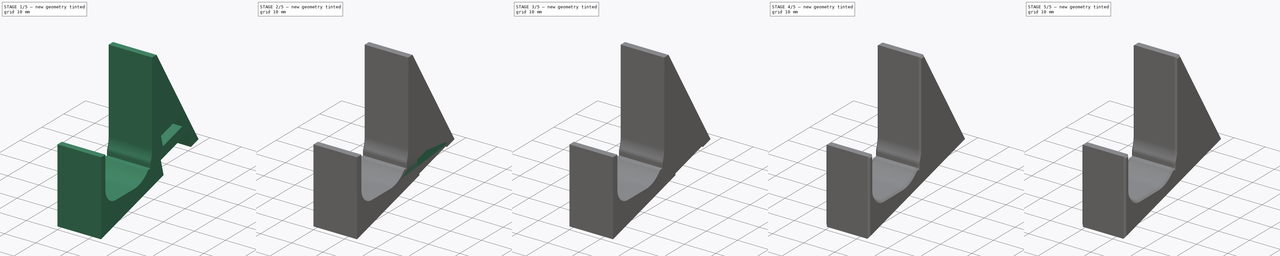
[diagram: build sequence overview — one tinted view per stage of 5, left to right]
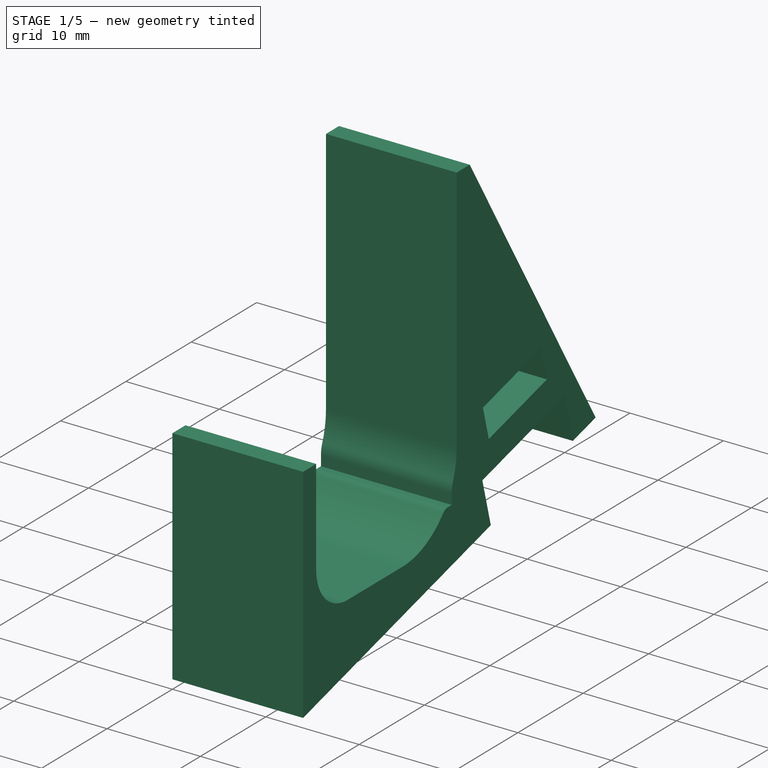
[diagram: stage 1 of 5 — iso view after this stage's code; geometry added in this stage tinted green]
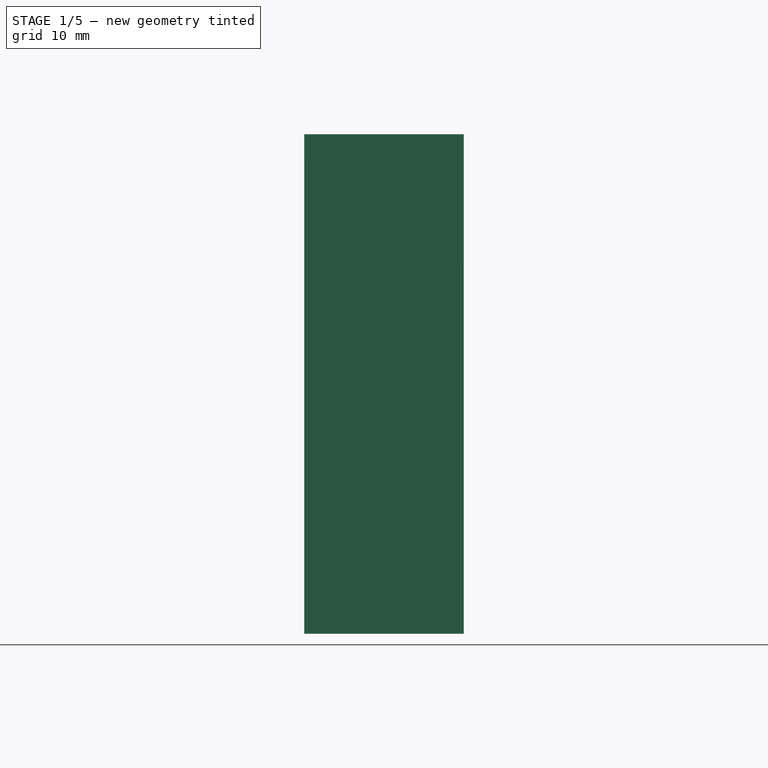
[diagram: stage 1 of 5 — front view after this stage's code; geometry added in this stage tinted green]
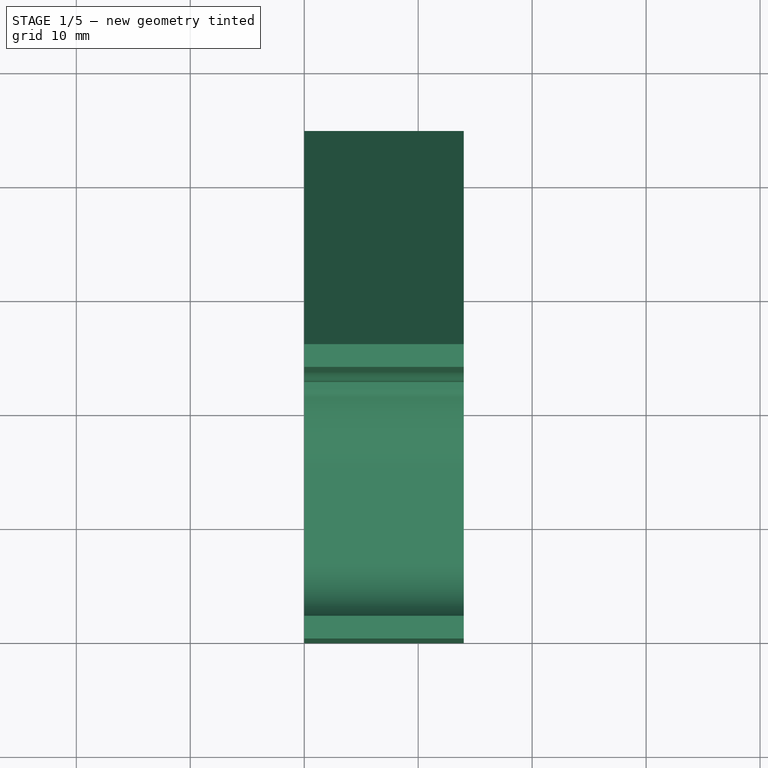
[diagram: stage 1 of 5 — top view after this stage's code; geometry added in this stage tinted green]
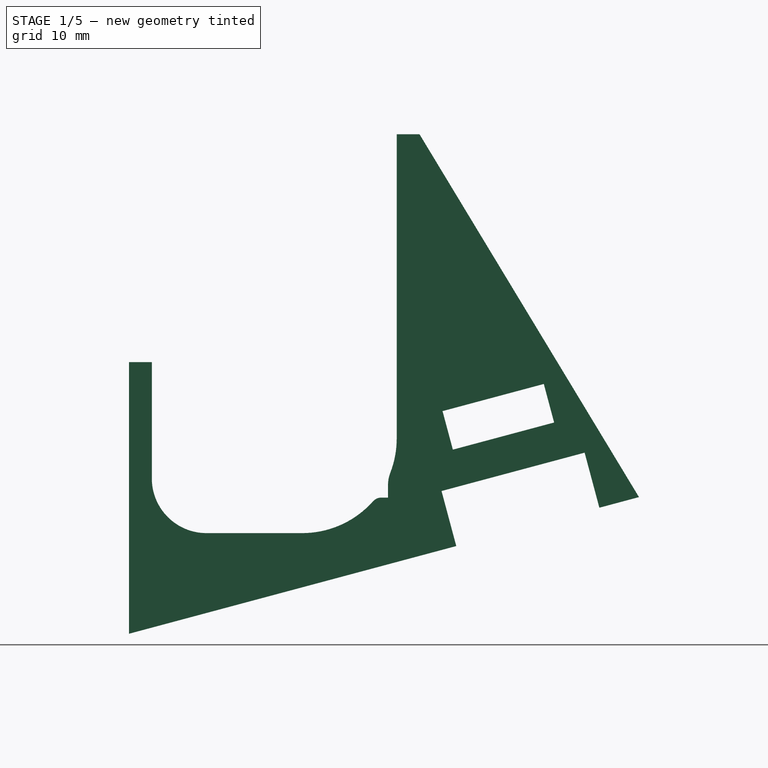
[diagram: stage 1 of 5 — right view after this stage's code; geometry added in this stage tinted green]
FCSTD DOCUMENT  (FreeCAD 1.0R39285 (Git))
Label: New Nintendo 2DS XL Kit
License: All rights reserved
LicenseURL: http://en.wikipedia.org/wiki/All_rights_reserved
objects: PartDesign::Pocket×11, Sketcher::SketchObject×9, PartDesign::Pad×5, PartDesign::Body×4, Part::Part2DObjectPython×3, PartDesign::FeatureBase×3, PartDesign::Chamfer×3, PartDesign::ShapeBinder×1, App::Part×1
note: 89 computed .brp shape members not serialized (recipe doc carries the construction recipe); baked Part::Feature solids carry a one-line shape summary decoded from their .brp

FEATURE [Sketcher::SketchObject] Sketch
  ArcFitTolerance = 0
  AttachmentSupport = -> [YZ_Plane]
  FullyConstrained = true
  MakeInternals = false
  MapMode = 5
  Placement = pos=(0,0,0) rot=(0.57735,0.57735,0.57735;2.0944rad)
  sketch-geometry (16):
    g0: LineSegment StartX=0 StartY=0 StartZ=0 EndX=0 EndY=17 EndZ=0
    g1: LineSegment StartX=0 StartY=0 StartZ=0 EndX=25.4904 EndY=0 EndZ=0
    g2: LineSegment StartX=25.4904 StartY=0 StartZ=0 EndX=25.4904 EndY=37 EndZ=0
    g3: LineSegment StartX=25.4904 StartY=37 StartZ=0 EndX=23.4904 EndY=37 EndZ=0
    g4: LineSegment StartX=23.4904 StartY=37 StartZ=0 EndX=23.4904 EndY=10.3 EndZ=0
    g5: LineSegment StartX=0 StartY=17 StartZ=0 EndX=2 EndY=17 EndZ=0
    g6: LineSegment StartX=2 StartY=17 StartZ=0 EndX=2 EndY=6.8 EndZ=0
    g7: ArcOfCircle CenterX=6.8 CenterY=6.8 CenterZ=0 NormalX=0 NormalY=0 NormalZ=1 AngleXU=0 Radius=4.8 StartAngle=3.14159 EndAngle=4.71239
    g8: LineSegment StartX=6.8 StartY=2 StartZ=0 EndX=15.2 EndY=2 EndZ=0
    g9: ArcOfCircle CenterX=15.2 CenterY=10.3 CenterZ=0 NormalX=0 NormalY=0 NormalZ=1 AngleXU=0 Radius=8.3 StartAngle=4.71239 EndAngle=5.55591
    g10: ArcOfCircle CenterX=22.147 CenterY=4.11701 CenterZ=0 NormalX=0 NormalY=0 NormalZ=1 AngleXU=0 Radius=1 StartAngle=1.5708 EndAngle=2.41432
    g11: LineSegment StartX=22.147 StartY=5.11701 StartZ=0 EndX=22.727 EndY=5.11701 EndZ=0
    g12: LineSegment StartX=22.727 StartY=5.11701 StartZ=0 EndX=22.727 EndY=6.21701 EndZ=0
    g13: ArcOfCircle CenterX=25.727 CenterY=6.21701 CenterZ=0 NormalX=0 NormalY=0 NormalZ=1 AngleXU=0 Radius=3 StartAngle=2.7719 EndAngle=3.14159
    g14: ArcOfCircle CenterX=15.1904 CenterY=10.3 CenterZ=0 NormalX=0 NormalY=0 NormalZ=1 AngleXU=0 Radius=8.3 StartAngle=5.9135 EndAngle=6.28319
    g15: LineSegment [constr] StartX=15.2 StartY=2 StartZ=0 EndX=15.2 EndY=0 EndZ=0
  constraints (44):
    c: Coincident(g0,g-1)
    c: PointOnObject(g0,g-2)
    c: Coincident(g1,g0)
    c: PointOnObject(g1,g-1)
    c: Coincident(g2,g1)
    c: Vertical(g2)
    c: Coincident(g3,g2)
    c: Horizontal(g3)
    c: Coincident(g4,g3)
    c: Vertical(g4)
    c: Coincident(g5,g0)
    c: Horizontal(g5)
    c: Coincident(g6,g5)
    c: Vertical(g6)
    c: Distance(g6) = 10.2
    c: Distance(g5) = 2
    c: Equal(g5,g3)
    c: Tangent(g7,g6) = -1.5708
    c: Tangent(g8,g7) = -1.5708
    c: Radius(g7) = 4.8
    c: Distance(g8) = 8.4
    c: Tangent(g9,g8) = -1.5708
    c: Tangent(g10,g9) = 1.5708
    c: Radius(g9) = 8.3
    c: Radius(g10) = 1
    c: Distance(g11) = 0.58
    c: Tangent(g11,g10) = 1.5708
    c: Coincident(g12,g11)
    c: Distance(g12) = 1.1
    c: Perpendicular(g12,g11)
    c: Tangent(g13,g12) = 1.5708
    c: Tangent(g14,g13) = 1.5708
    c: Tangent(g14,g4) = 1.5708
    c: Distance(g4) = 26.7
    c: Radius(g14) = 8.3
    c: Radius(g13) = 3
    c: Horizontal(g8)
    c: Horizontal(g11)
    c: Coincident(g15,g8)
    c: PointOnObject(g15,g1)
    c: Vertical(g15)
    c: Equal(g15,g5)
    c: DistanceX(g8,g9) = 6.2
    c: Distance(g2) = 37
FEATURE [PartDesign::Pad] Pad
  Direction = (1,0,0)
  Length = 14
  Length2 = 10
  Placement = pos=(0,0,0) rot=(0.57735,0.57735,0.57735;2.0944rad)
  Profile = -> Sketch
  ReferenceAxis = -> Sketch [N_Axis]
  Suppressed = false
  Type = 0
FEATURE [Part::Part2DObjectPython] ShapeString  # Draft 2D object (typed FeaturePython)
  FontFile = <path> Bit Git Repro/16BitVirtualStudiosDesigns/Font/OpenSans-Regular.ttf
  Fuse = false
  Justification = 6
  JustificationReference = 0
  KeepLeftMargin = true
  MakeFace = true
  ObliqueAngle = 0
  Placement = pos=(12.49,4,10.34) rot=(0,0.707107,0.707107;3.14159rad)
  ScaleToSize = false
  Size = 4
  String = N2XL
  Tracking = 0
FEATURE [PartDesign::Pocket] Pocket
  BaseFeature = -> Pad
  Direction = (-1e-16,-1,2e-16)
  Length = 0
  Length2 = 5
  Offset = 0.2
  Placement = pos=(0,0,0) rot=(0.57735,0.57735,0.57735;2.0944rad)
  Profile = -> ShapeString
  ReferenceAxis = -> ShapeString [N_Axis]
  Suppressed = false
  Type = 3
  UpToFace = -> Pad [Face3]
FEATURE [PartDesign::Body] Body  label="Profile"
  AllowCompound = false
  Group = -> [Sketch,Pad,ShapeString,Pocket]
  Origin = -> Origin
  Tip = -> Pocket
FEATURE [PartDesign::FeatureBase] Clone
  BaseFeature = -> Body
  Suppressed = false
FEATURE [Sketcher::SketchObject] Sketch001
  ArcFitTolerance = 0
  AttachmentSupport = -> [Clone]
  ExternalGeometry = -> [Clone]
  FullyConstrained = true
  MakeInternals = false
  MapMode = 5
  Placement = pos=(14,-1.24e-14,-3.1e-15) rot=(0.57735,0.57735,0.57735;2.0944rad)
  sketch-geometry (19):
    g0: LineSegment StartX=25.4904 StartY=37 StartZ=0 EndX=25.4904 EndY=2 EndZ=0
    g1: LineSegment StartX=25.4904 StartY=2 StartZ=0 EndX=0 EndY=2 EndZ=0
    g2: LineSegment StartX=0 StartY=2 StartZ=0 EndX=0 EndY=-6.83014 EndZ=0
    g3: LineSegment StartX=0 StartY=-6.83014 StartZ=0 EndX=28.7164 EndY=0.86439 EndZ=0
    g4: LineSegment StartX=28.7164 StartY=0.86439 StartZ=0 EndX=27.4223 EndY=5.69402 EndZ=0
    g5: LineSegment StartX=27.4223 StartY=5.69402 StartZ=0 EndX=39.9793 EndY=9.05867 EndZ=0
    g6: LineSegment StartX=39.9793 StartY=9.05867 StartZ=0 EndX=41.2734 EndY=4.22904 EndZ=0
    g7: LineSegment StartX=41.2734 StartY=4.22904 StartZ=0 EndX=44.7486 EndY=5.16022 EndZ=0
    g8: LineSegment StartX=44.7486 StartY=5.16022 StartZ=0 EndX=25.4904 EndY=37 EndZ=0
    g9: LineSegment StartX=28.4164 StartY=9.32503 StartZ=0 EndX=37.3029 EndY=11.7062 EndZ=0
    g10: LineSegment StartX=37.3029 StartY=11.7062 StartZ=0 EndX=36.397 EndY=15.0869 EndZ=0
    g11: LineSegment StartX=36.397 StartY=15.0869 StartZ=0 EndX=27.5105 EndY=12.7058 EndZ=0
    g12: LineSegment StartX=27.5105 StartY=12.7058 StartZ=0 EndX=28.4164 EndY=9.32503 EndZ=0
    g13: LineSegment [constr] StartX=28.7164 StartY=0.86439 StartZ=0 EndX=41.2734 EndY=4.22904 EndZ=0
    g14: LineSegment [constr] StartX=33.7008 StartY=7.37634 StartZ=0 EndX=32.8596 EndY=10.5156 EndZ=0
    g15: LineSegment [constr] StartX=27.4223 StartY=5.69402 StartZ=0 EndX=25.4904 EndY=5.17638 EndZ=0
    g16: LineSegment [constr] StartX=27.5105 StartY=12.7058 StartZ=0 EndX=25.4904 EndY=12.1645 EndZ=0
    g17: LineSegment [constr] StartX=36.397 StartY=15.0869 StartZ=0 EndX=38.4171 EndY=15.6282 EndZ=0
    g18: LineSegment [constr] StartX=39.9793 StartY=9.05867 StartZ=0 EndX=42.0544 EndY=9.61468 EndZ=0
  constraints (54):
    c: Coincident(g0,g-4)
    c: PointOnObject(g0,g-4)
    c: Coincident(g1,g0)
    c: PointOnObject(g1,g-2)
    c: Horizontal(g1)
    c: Coincident(g2,g1)
    c: Vertical(g2)
    c: Coincident(g3,g2)
    c: Coincident(g4,g3)
    c: Coincident(g5,g4)
    c: Coincident(g6,g5)
    c: Coincident(g7,g6)
    c: Coincident(g8,g7)
    c: Coincident(g8,g0)
    c: Coincident(g10,g9)
    c: Coincident(g11,g10)
    c: Coincident(g12,g11)
    c: Coincident(g12,g9)
    c: Coincident(g13,g3)
    c: Coincident(g13,g6)
    c: Symmetric(g9,g9,g14)
    c: Symmetric(g5,g4,g14)
    c: Perpendicular(g4,g3)
    c: Perpendicular(g7,g6)
    c: Perpendicular(g5,g6)
    c: Perpendicular(g14,g5)
    c: Perpendicular(g5,g4)
    c: Perpendicular(g14,g9)
    c: Perpendicular(g12,g9)
    c: Perpendicular(g10,g9)
    c: Perpendicular(g10,g11)
    c: Parallel(g13,g3)
    c: PointOnObject(g-4,g3)
    c: PointOnObject(g-3,g1)
    c: Distance(g6) = 5
    c: Distance(g5) = 13
    c: Distance(g14) = 3.25
    c: Distance(g10) = 3.5
    c: Distance(g11) = 9.2
    c: Angle(g3,g2) = 1.309
    c: Coincident(g15,g4)
    c: PointOnObject(g15,g0)
    c: Coincident(g16,g11)
    c: PointOnObject(g16,g0)
    c: Coincident(g17,g10)
    c: PointOnObject(g17,g8)
    c: Coincident(g18,g5)
    c: PointOnObject(g18,g8)
    c: Parallel(g16,g11)
    c: Parallel(g17,g11)
    c: Parallel(g18,g5)
    c: Parallel(g5,g15)
    c: Equal(g16,g17)
    c: Distance(g15) = 2
FEATURE [PartDesign::Pad] Pad001
  BaseFeature = -> Clone
  Direction = (1,0,0)
  Length = 14
  Length2 = 10
  Profile = -> Sketch001
  ReferenceAxis = -> Sketch001 [N_Axis]
  Refine = true
  Reversed = true
  Suppressed = false
  Type = 0
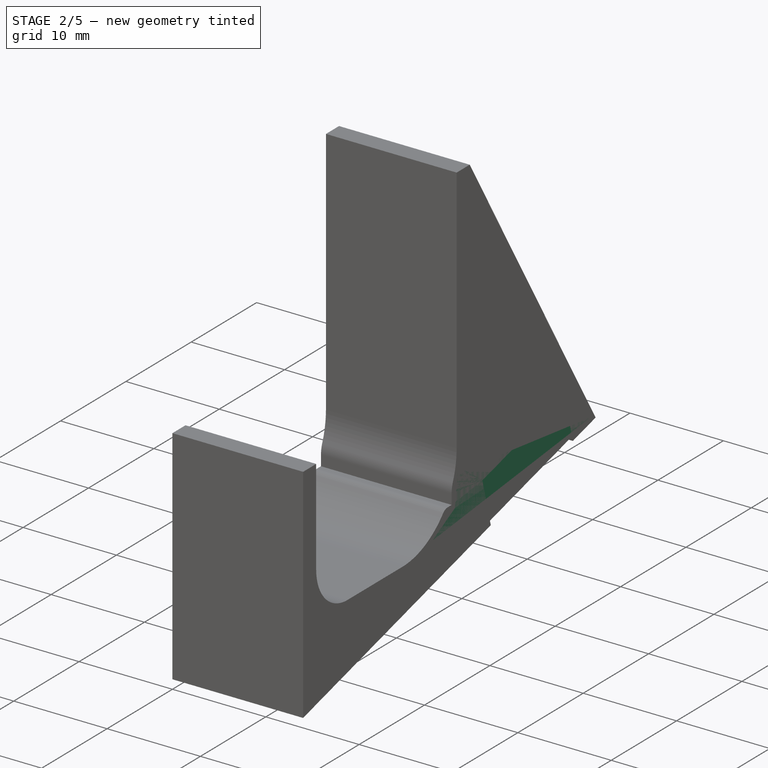
[diagram: stage 2 of 5 — iso view after this stage's code; geometry added in this stage tinted green]
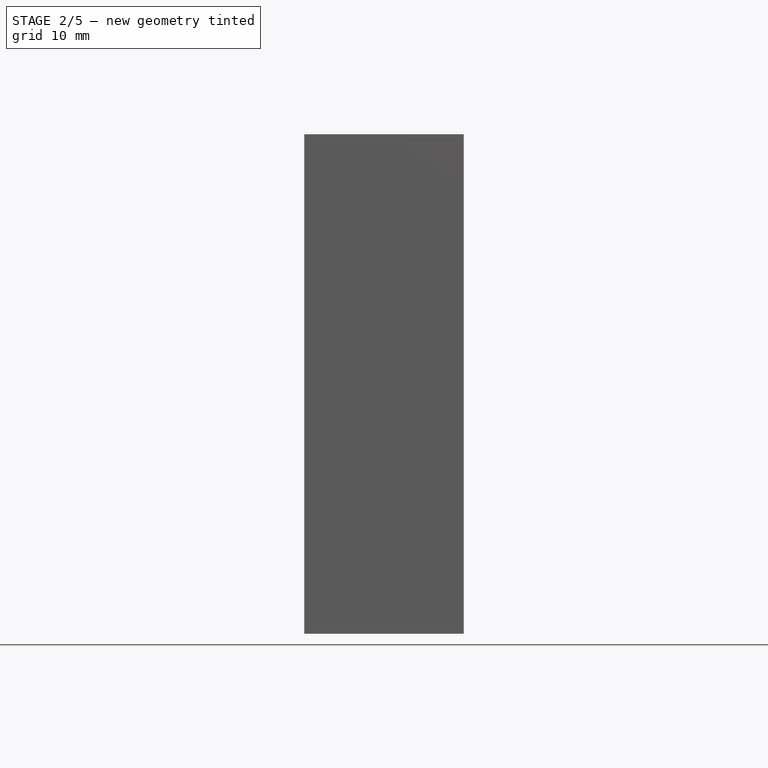
[diagram: stage 2 of 5 — front view after this stage's code; geometry added in this stage tinted green]
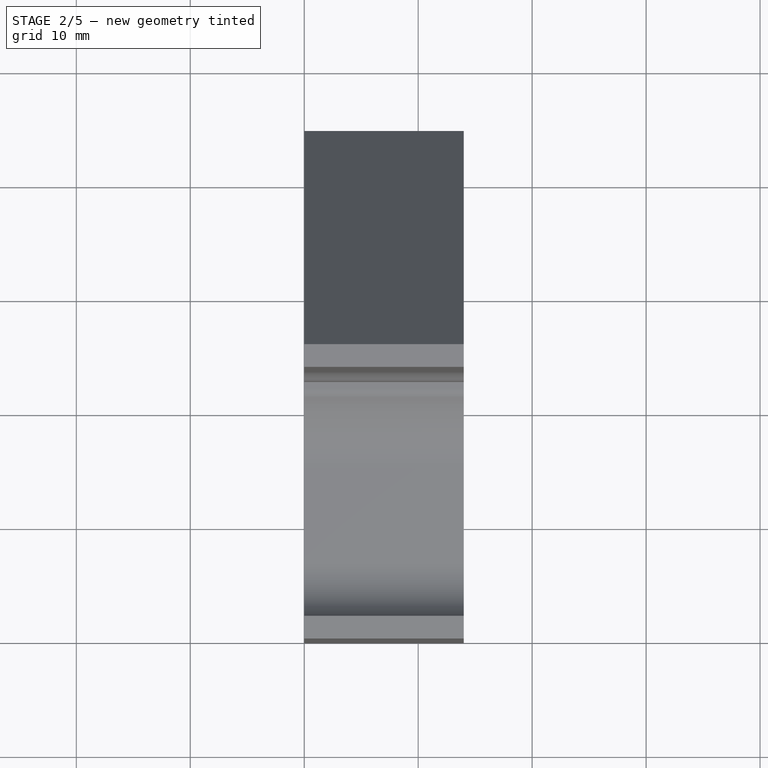
[diagram: stage 2 of 5 — top view after this stage's code; geometry added in this stage tinted green]
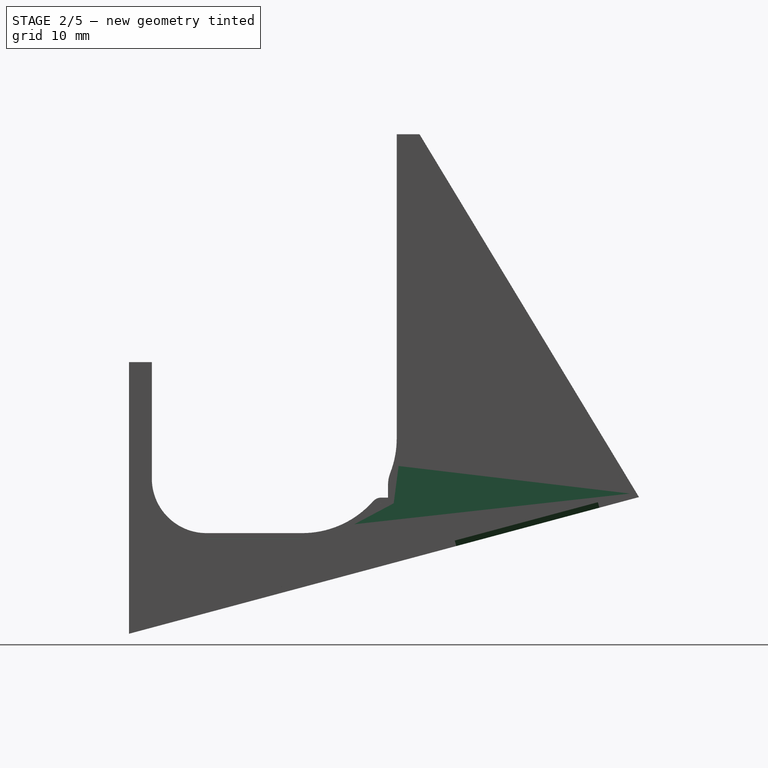
[diagram: stage 2 of 5 — right view after this stage's code; geometry added in this stage tinted green]
FEATURE [PartDesign::FeatureBase] Clone001
  BaseFeature = -> Pad001
  Suppressed = false
FEATURE [Sketcher::SketchObject] Sketch007
  ArcFitTolerance = 0
  AttachmentSupport = -> [Pad001]
  ExternalGeometry = -> [Pad001]
  FullyConstrained = true
  MakeInternals = false
  MapMode = 5
  Placement = pos=(14,6.6e-15,3.8e-15) rot=(0.57735,0.57735,0.57735;2.0944rad)
  sketch-geometry (8):
    g0: LineSegment StartX=27.4223 StartY=5.69402 StartZ=0 EndX=39.9793 EndY=9.05867 EndZ=0
    g1: LineSegment StartX=41.2734 StartY=4.22904 StartZ=0 EndX=28.7164 EndY=0.86439 EndZ=0
    g2: LineSegment StartX=28.7164 StartY=0.86439 StartZ=0 EndX=27.4223 EndY=5.69402 EndZ=0
    g3: LineSegment StartX=28.4164 StartY=9.32503 StartZ=0 EndX=27.5105 EndY=12.7058 EndZ=0
    g4: LineSegment StartX=27.5105 StartY=12.7058 StartZ=0 EndX=36.397 EndY=15.0869 EndZ=0
    g5: LineSegment StartX=28.4164 StartY=9.32503 StartZ=0 EndX=37.3029 EndY=11.7062 EndZ=0
    g6: LineSegment StartX=36.397 StartY=15.0869 StartZ=0 EndX=37.3029 EndY=11.7062 EndZ=0
    g7: LineSegment StartX=39.9793 StartY=9.05867 StartZ=0 EndX=41.2734 EndY=4.22904 EndZ=0
  constraints (16):
    c: Coincident(g0,g-6)
    c: Coincident(g0,g-5)
    c: Coincident(g1,g-5)
    c: Coincident(g1,g-6)
    c: Coincident(g2,g1)
    c: Coincident(g2,g0)
    c: Coincident(g3,g-3)
    c: Coincident(g3,g-3)
    c: Coincident(g4,g3)
    c: Coincident(g4,g-4)
    c: Coincident(g5,g3)
    c: Coincident(g5,g-4)
    c: Coincident(g6,g4)
    c: Coincident(g6,g5)
    c: Coincident(g7,g0)
    c: Coincident(g7,g1)
FEATURE [PartDesign::Pad] Pad002
  BaseFeature = -> Pad001
  Direction = (1,0,0)
  Length = 14
  Length2 = 10
  Profile = -> Sketch007
  ReferenceAxis = -> Sketch007 [N_Axis]
  Refine = true
  Reversed = true
  Suppressed = false
  Type = 0
FEATURE [PartDesign::Pocket] Pocket007
  BaseFeature = -> Pad002
  Direction = (0,-0.258819,0.965926)
  Length = 0
  Length2 = 5
  Offset = 0.5
  Profile = -> Sketch005
  ReferenceAxis = -> Sketch005 [N_Axis]
  Suppressed = false
  Type = 3
  UpToFace = -> Pad002 [Face81]
FEATURE [PartDesign::Body] Body002  label="Kit Left"
  AllowCompound = false
  BaseFeature = -> Pad001
  Group = -> [Clone001,Sketch002,Pocket001,Sketch003,Pocket002,Sketch006,Pocket003,Pocket004,Pocket005,Pocket006,Sketch009,Pad004,ShapeString003,Pocket008,Chamfer001]
  Origin = -> Origin003
  Placement = pos=(100,0,0) rot=(-1,0,0;0.261799rad)
  Tip = -> Chamfer001
FEATURE [PartDesign::Chamfer] Chamfer002
  Angle = 45
  Base = -> Pocket007 [Face5,Face4]
  BaseFeature = -> Pocket007
  ChamferType = 0
  FlipDirection = false
  Size = 0.5
  Size2 = 1
  SupportTransform = false
  Suppressed = false
  UseAllEdges = false
FEATURE [PartDesign::ShapeBinder] ShapeBinder
  Support = -> [Chamfer002]
  TraceSupport = false
FEATURE [PartDesign::Pocket] Pocket010
  BaseFeature = -> Chamfer002
  Direction = (0,-0.258819,0.965926)
  Length = 1
  Length2 = 5
  Profile = -> ShapeBinder
  Refine = true
  Suppressed = false
  Type = 0
FEATURE [PartDesign::Body] Body001  label="Stand"
  AllowCompound = false
  BaseFeature = -> Body
  Group = -> [Clone,Sketch001,Pad001,Sketch005,Sketch007,Pad002,Pocket007,Chamfer002,ShapeBinder,Pocket010]
  Origin = -> Origin002
  Placement = pos=(50,0,0) rot=(-1,0,0;0.261799rad)
  Tip = -> Pocket010
FEATURE [App::Part] Part  label="New 2DS XL"
  Group = -> [Body,Body001,Body002,Body003]
  Origin = -> Origin001
note: 3 file-system paths scrubbed to <path> (originals preserved in the JSON sidecar)
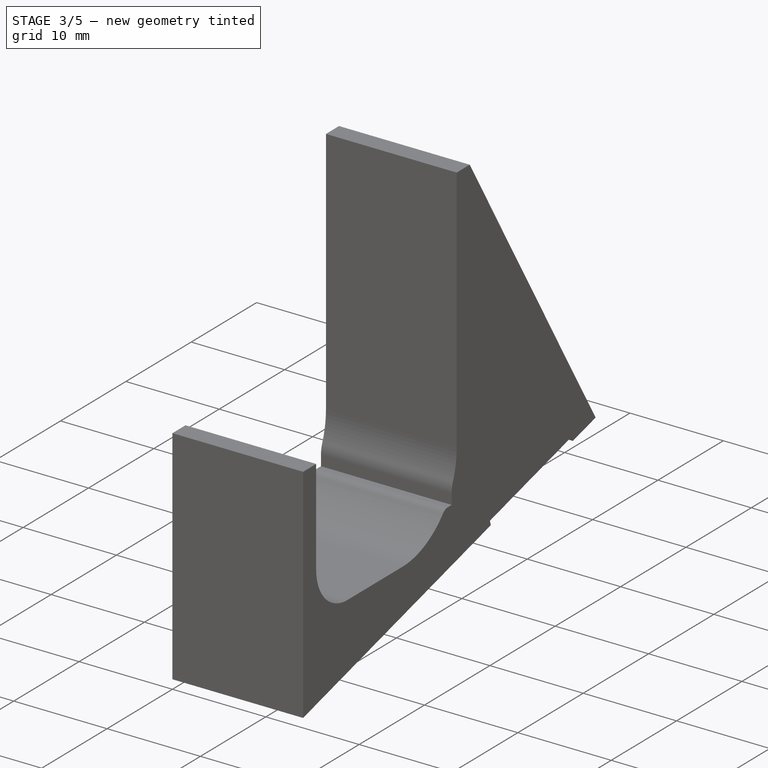
[diagram: stage 3 of 5 — iso view after this stage's code; geometry added in this stage tinted green]
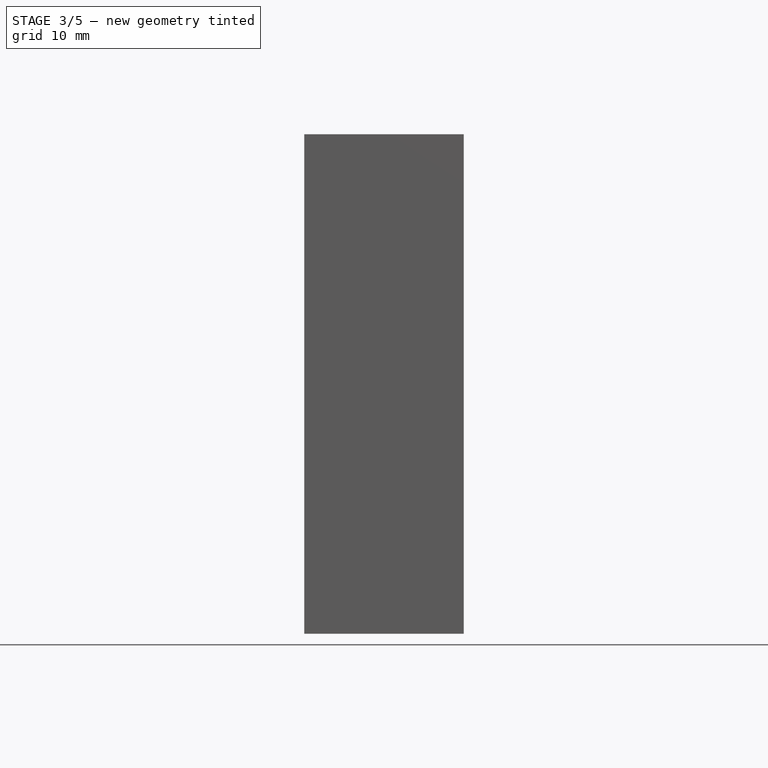
[diagram: stage 3 of 5 — front view after this stage's code; geometry added in this stage tinted green]
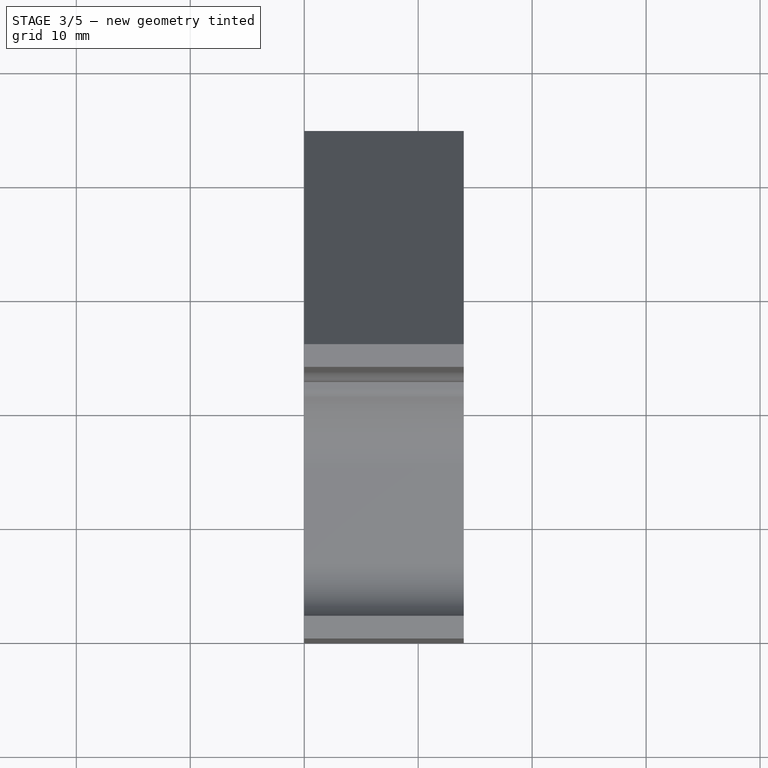
[diagram: stage 3 of 5 — top view after this stage's code; geometry added in this stage tinted green]
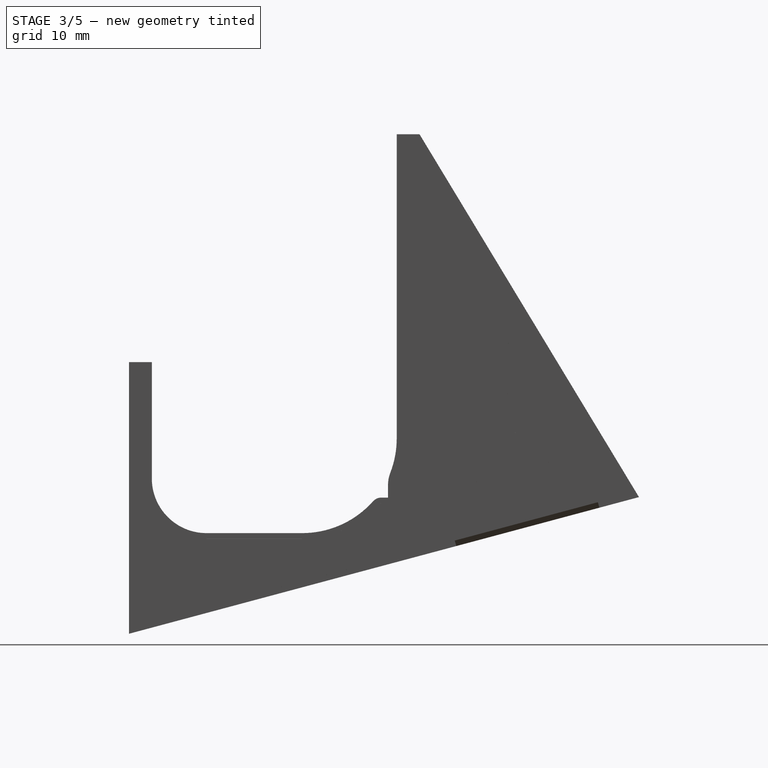
[diagram: stage 3 of 5 — right view after this stage's code; geometry added in this stage tinted green]
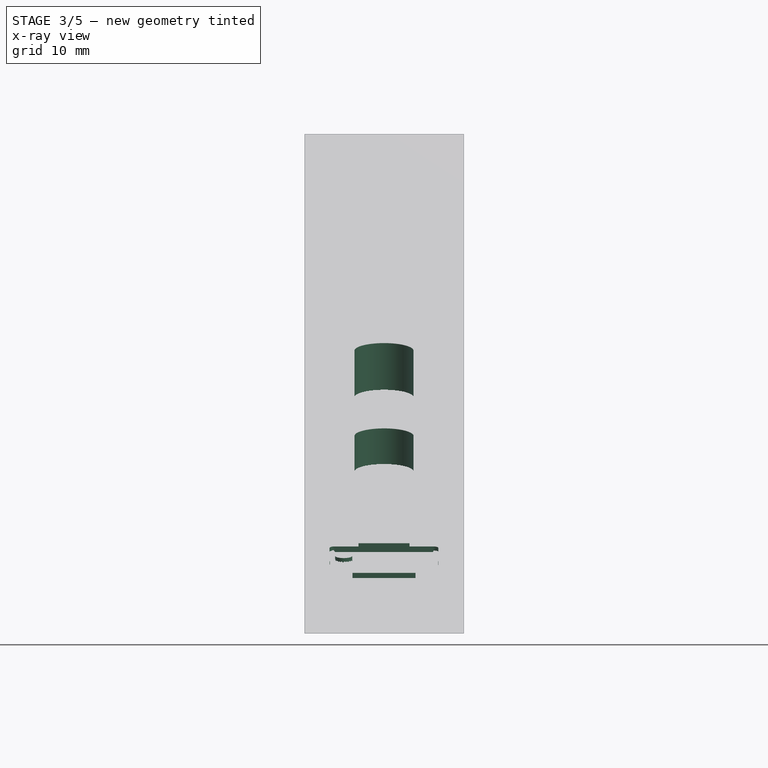
[diagram: stage 3 of 5 — x-ray composite at the front view; earlier geometry ghosted, this stage's added geometry solid]
FEATURE [Sketcher::SketchObject] Sketch002
  ArcFitTolerance = 0
  AttachmentSupport = -> [Clone001]
  ExternalGeometry = -> [Clone001]
  FullyConstrained = true
  MakeInternals = false
  MapMode = 5
  Placement = pos=(0,0.413439,-1.54298) rot=(1,0,0;3.40339rad)
  sketch-geometry (1):
    g0: Circle CenterX=7 CenterY=-34.4616 CenterZ=0 NormalX=0 NormalY=0 NormalZ=1 AngleXU=0 Radius=2.6
  constraints (2):
    c: Symmetric(g-3,g-4,g0)
    c: Diameter(g0) = 5.2
FEATURE [PartDesign::Pocket] Pocket001
  BaseFeature = -> Clone001
  Direction = (0,-0.258819,0.965926)
  Length = 11
  Length2 = 5
  Profile = -> Sketch002
  ReferenceAxis = -> Sketch002 [N_Axis]
  Suppressed = false
  Type = 0
FEATURE [Sketcher::SketchObject] Sketch003
  ArcFitTolerance = 0
  AttachmentSupport = -> [Pocket001]
  ExternalGeometry = -> [Pocket001]
  FullyConstrained = true
  MakeInternals = false
  MapMode = 5
  Placement = pos=(0,0.413439,-1.54298) rot=(1,0,0;3.40339rad)
  sketch-geometry (1):
    g0: Circle CenterX=7 CenterY=-34.4616 CenterZ=0 NormalX=0 NormalY=0 NormalZ=1 AngleXU=0 Radius=2.6
  constraints (2):
    c: Coincident(g0,g-3)
    c: Diameter(g0) = 5.2
FEATURE [PartDesign::Pocket] Pocket002
  BaseFeature = -> Pocket001
  Direction = (0,-0.258819,0.965926)
  Length = 5
  Length2 = 5
  Profile = -> Sketch003
  ReferenceAxis = -> Sketch003 [N_Axis]
  Suppressed = false
  Type = 0
FEATURE [Sketcher::SketchObject] Sketch005  label="3DS Icon001"
  ArcFitTolerance = 0
  FullyConstrained = false
  MakeInternals = false
  Placement = pos=(2.18,34.02,-1) rot=(1,0,0;3.40339rad)
  sketch-geometry (23):
    g0: BSplineCurve PolesCount=7 KnotsCount=4 Degree=2 IsPeriodic=0
    g1: BSplineCurve PolesCount=3 KnotsCount=2 Degree=2 IsPeriodic=0
    g2: BSplineCurve PolesCount=3 KnotsCount=2 Degree=2 IsPeriodic=0
    g3: BSplineCurve PolesCount=2 KnotsCount=2 Degree=1 IsPeriodic=0
    g4: BSplineCurve PolesCount=3 KnotsCount=2 Degree=2 IsPeriodic=0
    g5: BSplineCurve PolesCount=2 KnotsCount=2 Degree=1 IsPeriodic=0
    g6: BSplineCurve PolesCount=3 KnotsCount=2 Degree=2 IsPeriodic=0
    g7: BSplineCurve PolesCount=2 KnotsCount=2 Degree=1 IsPeriodic=0
    g8: BSplineCurve PolesCount=3 KnotsCount=2 Degree=2 IsPeriodic=0
    g9: BSplineCurve PolesCount=3 KnotsCount=2 Degree=2 IsPeriodic=0
    g10: BSplineCurve PolesCount=2 KnotsCount=2 Degree=1 IsPeriodic=0
    g11: BSplineCurve PolesCount=3 KnotsCount=2 Degree=2 IsPeriodic=0
    g12: BSplineCurve PolesCount=2 KnotsCount=2 Degree=1 IsPeriodic=0
    g13: BSplineCurve PolesCount=3 KnotsCount=2 Degree=2 IsPeriodic=0
    g14: BSplineCurve PolesCount=2 KnotsCount=2 Degree=1 IsPeriodic=0
    g15: BSplineCurve PolesCount=2 KnotsCount=2 Degree=1 IsPeriodic=0
    g16: BSplineCurve PolesCount=2 KnotsCount=2 Degree=1 IsPeriodic=0
    g17: BSplineCurve PolesCount=2 KnotsCount=2 Degree=1 IsPeriodic=0
    g18: BSplineCurve PolesCount=2 KnotsCount=2 Degree=1 IsPeriodic=0
    g19: BSplineCurve PolesCount=2 KnotsCount=2 Degree=1 IsPeriodic=0
    g20: BSplineCurve PolesCount=2 KnotsCount=2 Degree=1 IsPeriodic=0
    g21: BSplineCurve PolesCount=2 KnotsCount=2 Degree=1 IsPeriodic=0
    g22: BSplineCurve PolesCount=2 KnotsCount=2 Degree=1 IsPeriodic=0
  constraints (22):
    c: Coincident(g1,g2)
    c: Coincident(g2,g3)
    c: Coincident(g3,g4)
    c: Coincident(g4,g5)
    c: Coincident(g5,g6)
    c: Coincident(g6,g7)
    c: Coincident(g7,g8)
    c: Coincident(g8,g9)
    c: Coincident(g9,g10)
    c: Coincident(g10,g11)
    c: Coincident(g11,g12)
    c: Coincident(g12,g13)
    c: Coincident(g13,g14)
    c: Coincident(g14,g1)
    c: Coincident(g15,g16)
    c: Coincident(g16,g17)
    c: Coincident(g17,g18)
    c: Coincident(g18,g15)
    c: Coincident(g19,g20)
    c: Coincident(g20,g21)
    c: Coincident(g21,g22)
    c: Coincident(g22,g19)
FEATURE [Sketcher::SketchObject] Sketch006  label="3DS Icon002"
  ArcFitTolerance = 0
  FullyConstrained = false
  MakeInternals = false
  Placement = pos=(2.18,19.25,-10) rot=(1,0,0;3.40339rad)
  sketch-geometry (23):
    g0: BSplineCurve PolesCount=7 KnotsCount=4 Degree=2 IsPeriodic=0
    g1: BSplineCurve PolesCount=3 KnotsCount=2 Degree=2 IsPeriodic=0
    g2: BSplineCurve PolesCount=3 KnotsCount=2 Degree=2 IsPeriodic=0
    g3: BSplineCurve PolesCount=2 KnotsCount=2 Degree=1 IsPeriodic=0
    g4: BSplineCurve PolesCount=3 KnotsCount=2 Degree=2 IsPeriodic=0
    g5: BSplineCurve PolesCount=2 KnotsCount=2 Degree=1 IsPeriodic=0
    g6: BSplineCurve PolesCount=3 KnotsCount=2 Degree=2 IsPeriodic=0
    g7: BSplineCurve PolesCount=2 KnotsCount=2 Degree=1 IsPeriodic=0
    g8: BSplineCurve PolesCount=3 KnotsCount=2 Degree=2 IsPeriodic=0
    g9: BSplineCurve PolesCount=3 KnotsCount=2 Degree=2 IsPeriodic=0
    g10: BSplineCurve PolesCount=2 KnotsCount=2 Degree=1 IsPeriodic=0
    g11: BSplineCurve PolesCount=3 KnotsCount=2 Degree=2 IsPeriodic=0
    g12: BSplineCurve PolesCount=2 KnotsCount=2 Degree=1 IsPeriodic=0
    g13: BSplineCurve PolesCount=3 KnotsCount=2 Degree=2 IsPeriodic=0
    g14: BSplineCurve PolesCount=2 KnotsCount=2 Degree=1 IsPeriodic=0
    g15: BSplineCurve PolesCount=2 KnotsCount=2 Degree=1 IsPeriodic=0
    g16: BSplineCurve PolesCount=2 KnotsCount=2 Degree=1 IsPeriodic=0
    g17: BSplineCurve PolesCount=2 KnotsCount=2 Degree=1 IsPeriodic=0
    g18: BSplineCurve PolesCount=2 KnotsCount=2 Degree=1 IsPeriodic=0
    g19: BSplineCurve PolesCount=2 KnotsCount=2 Degree=1 IsPeriodic=0
    g20: BSplineCurve PolesCount=2 KnotsCount=2 Degree=1 IsPeriodic=0
    g21: BSplineCurve PolesCount=2 KnotsCount=2 Degree=1 IsPeriodic=0
    g22: BSplineCurve PolesCount=2 KnotsCount=2 Degree=1 IsPeriodic=0
  constraints (22):
    c: Coincident(g1,g2)
    c: Coincident(g2,g3)
    c: Coincident(g3,g4)
    c: Coincident(g4,g5)
    c: Coincident(g5,g6)
    c: Coincident(g6,g7)
    c: Coincident(g7,g8)
    c: Coincident(g8,g9)
    c: Coincident(g9,g10)
    c: Coincident(g10,g11)
    c: Coincident(g11,g12)
    c: Coincident(g12,g13)
    c: Coincident(g13,g14)
    c: Coincident(g14,g1)
    c: Coincident(g15,g16)
    c: Coincident(g16,g17)
    c: Coincident(g17,g18)
    c: Coincident(g18,g15)
    c: Coincident(g19,g20)
    c: Coincident(g20,g21)
    c: Coincident(g21,g22)
    c: Coincident(g22,g19)
FEATURE [PartDesign::Pocket] Pocket003
  BaseFeature = -> Pocket002
  Direction = (0,-0.258819,0.965926)
  Length = 0
  Length2 = 5
  Offset = 0.5
  Profile = -> Sketch006
  ReferenceAxis = -> Sketch006 [N_Axis]
  Suppressed = false
  Type = 3
  UpToFace = -> Pocket002 [Face6]
FEATURE [PartDesign::Pocket] Pocket004
  BaseFeature = -> Pocket003
  Direction = (0,-0.258819,0.965926)
  Length = 1
  Length2 = 5
  Profile = -> Pocket003 [Face117]
  Suppressed = false
  Type = 0
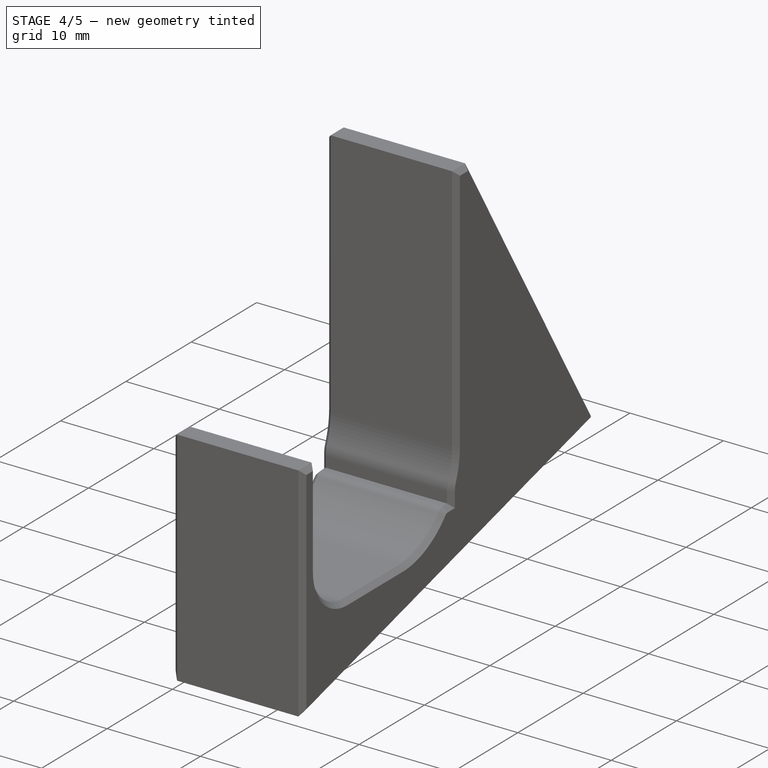
[diagram: stage 4 of 5 — iso view after this stage's code; geometry added in this stage tinted green]
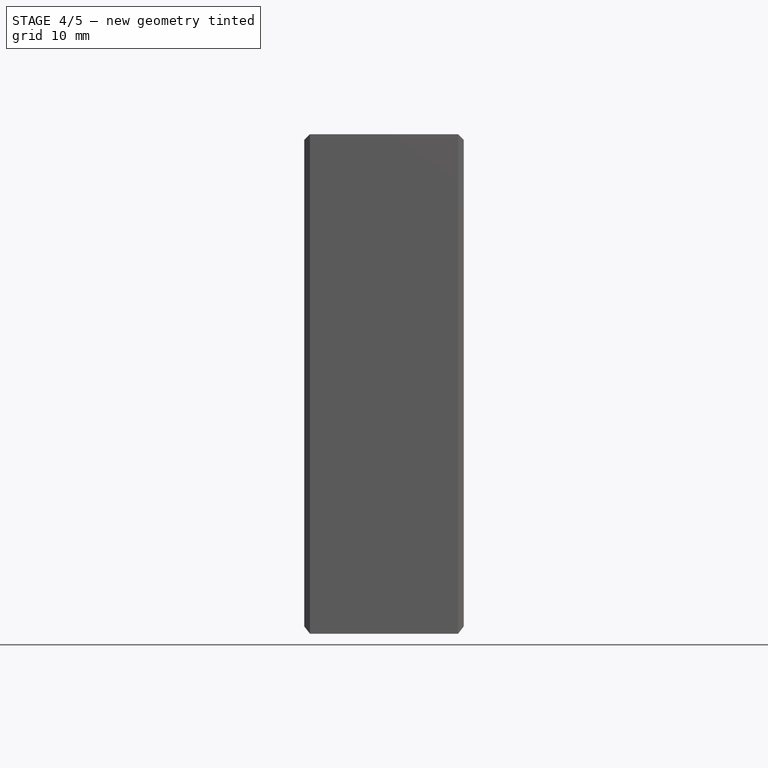
[diagram: stage 4 of 5 — front view after this stage's code; geometry added in this stage tinted green]
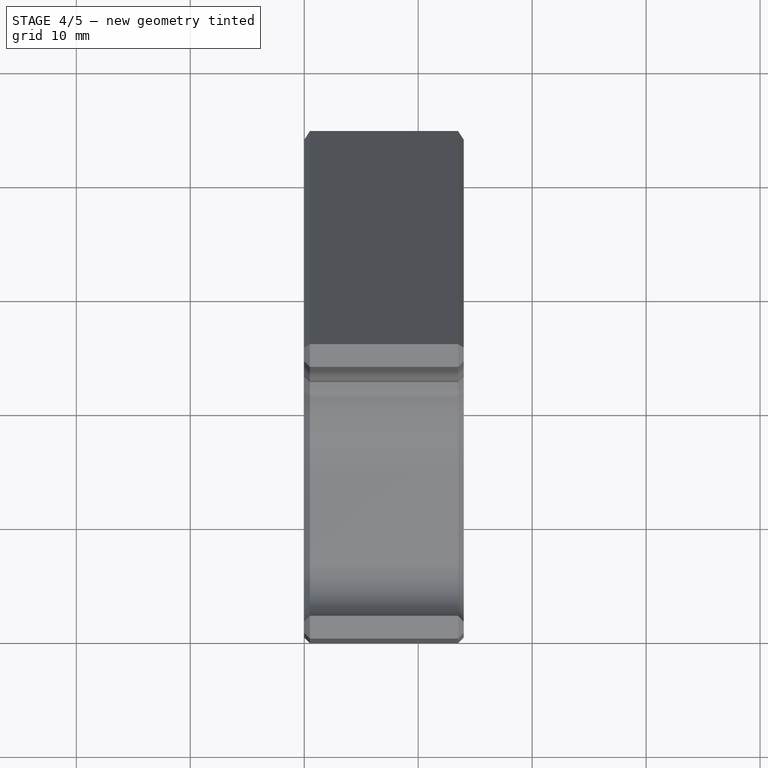
[diagram: stage 4 of 5 — top view after this stage's code; geometry added in this stage tinted green]
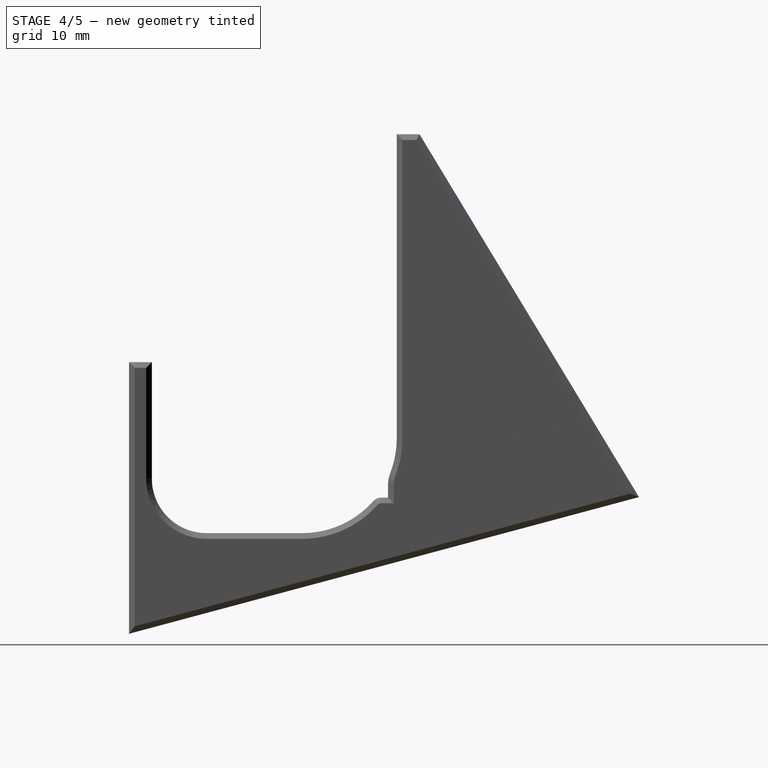
[diagram: stage 4 of 5 — right view after this stage's code; geometry added in this stage tinted green]
FEATURE [PartDesign::Pocket] Pocket005
  BaseFeature = -> Pocket004
  Direction = (0,-0.258819,0.965926)
  Length = 1
  Length2 = 5
  Profile = -> Pocket004 [Face119]
  Suppressed = false
  Type = 0
FEATURE [PartDesign::Pocket] Pocket006
  BaseFeature = -> Pocket005
  Direction = (0,-0.258819,0.965926)
  Length = 1
  Length2 = 5
  Profile = -> Pocket005 [Face118]
  Suppressed = false
  Type = 0
FEATURE [Sketcher::SketchObject] Sketch009
  ArcFitTolerance = 0
  AttachmentSupport = -> [Pocket006]
  ExternalGeometry = -> [Pocket006]
  FullyConstrained = true
  MakeInternals = false
  MapMode = 5
  Placement = pos=(-1.16e-14,0,0) rot=(0.57735,-0.57735,-0.57735;2.0944rad)
  sketch-geometry (4):
    g0: LineSegment StartX=-36.397 StartY=15.0869 StartZ=0 EndX=-27.5105 EndY=12.7058 EndZ=0
    g1: LineSegment StartX=-27.5105 StartY=12.7058 StartZ=0 EndX=-28.4164 EndY=9.32503 EndZ=0
    g2: LineSegment StartX=-28.4164 StartY=9.32503 StartZ=0 EndX=-37.3029 EndY=11.7062 EndZ=0
    g3: LineSegment StartX=-37.3029 StartY=11.7062 StartZ=0 EndX=-36.397 EndY=15.0869 EndZ=0
  constraints (8):
    c: Coincident(g0,g-3)
    c: Coincident(g0,g-4)
    c: Coincident(g1,g0)
    c: Coincident(g1,g-4)
    c: Coincident(g2,g1)
    c: Coincident(g2,g-3)
    c: Coincident(g3,g2)
    c: Coincident(g3,g0)
FEATURE [PartDesign::Pad] Pad004
  BaseFeature = -> Pocket006
  Direction = (-1,0,0)
  Length = 2
  Length2 = 10
  Profile = -> Sketch009
  ReferenceAxis = -> Sketch009 [N_Axis]
  Refine = true
  Reversed = true
  Suppressed = false
  Type = 0
FEATURE [Part::Part2DObjectPython] ShapeString002  # Draft 2D object (typed FeaturePython)
  FontFile = <path> Bit Git Repro/16BitVirtualStudiosDesigns/Font/OpenSans-Regular.ttf
  Fuse = false
  Justification = 6
  JustificationReference = 0
  KeepLeftMargin = true
  MakeFace = true
  ObliqueAngle = 0
  Placement = pos=(3.43,10.19,-7) rot=(1,0,0;3.40339rad)
  ScaleToSize = false
  Size = 10
  String = R
  Tracking = 0
FEATURE [Part::Part2DObjectPython] ShapeString003  # Draft 2D object (typed FeaturePython)
  FontFile = <path> Bit Git Repro/16BitVirtualStudiosDesigns/Font/OpenSans-Regular.ttf
  Fuse = false
  Justification = 6
  JustificationReference = 0
  KeepLeftMargin = true
  MakeFace = true
  ObliqueAngle = 0
  Placement = pos=(3.72,10.19,-7) rot=(1,0,0;3.40339rad)
  ScaleToSize = false
  Size = 10
  String = L
  Tracking = 0
FEATURE [PartDesign::Pocket] Pocket008
  BaseFeature = -> Pad004
  Direction = (0,-0.258819,0.965926)
  Length = 0
  Length2 = 5
  Offset = 0.5
  Profile = -> ShapeString003
  ReferenceAxis = -> ShapeString003 [N_Axis]
  Suppressed = false
  Type = 3
  UpToFace = -> Pad004 [Face5]
FEATURE [PartDesign::Body] Body003  label="Kit Right"
  AllowCompound = false
  BaseFeature = -> Pocket006
  Group = -> [Clone002,Sketch008,Pad003,ShapeString002,Pocket009,Chamfer]
  Origin = -> Origin004
  Placement = pos=(180,0,0) rot=(-1,0,0;0.261799rad)
  Tip = -> Chamfer
FEATURE [PartDesign::Chamfer] Chamfer001
  Angle = 45
  Base = -> Pocket008 [Face4,Face5]
  BaseFeature = -> Pocket008
  ChamferType = 0
  FlipDirection = false
  Size = 0.5
  Size2 = 1
  SupportTransform = false
  Suppressed = false
  UseAllEdges = false
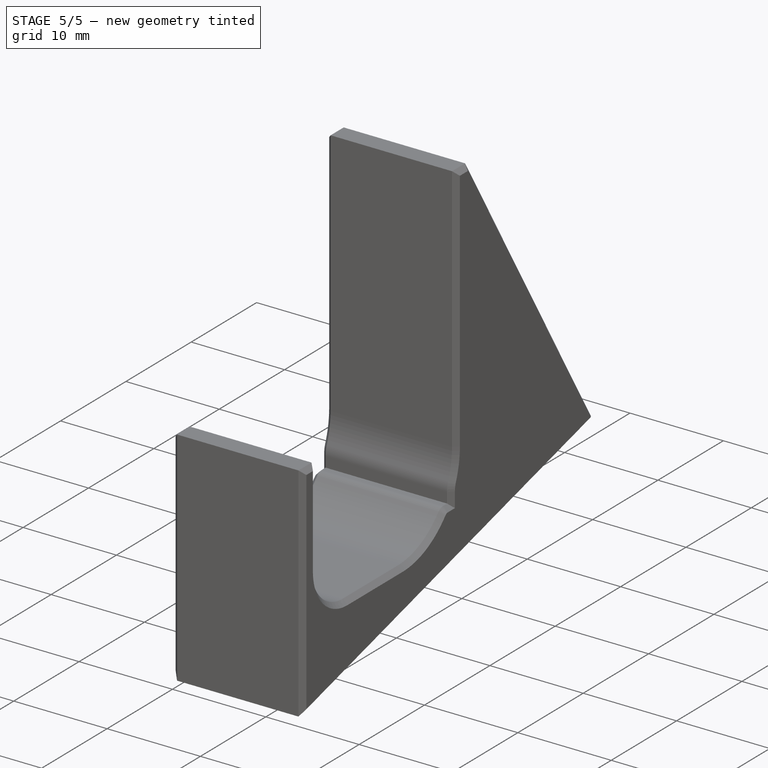
[diagram: stage 5 of 5 — iso view after this stage's code; geometry added in this stage tinted green]
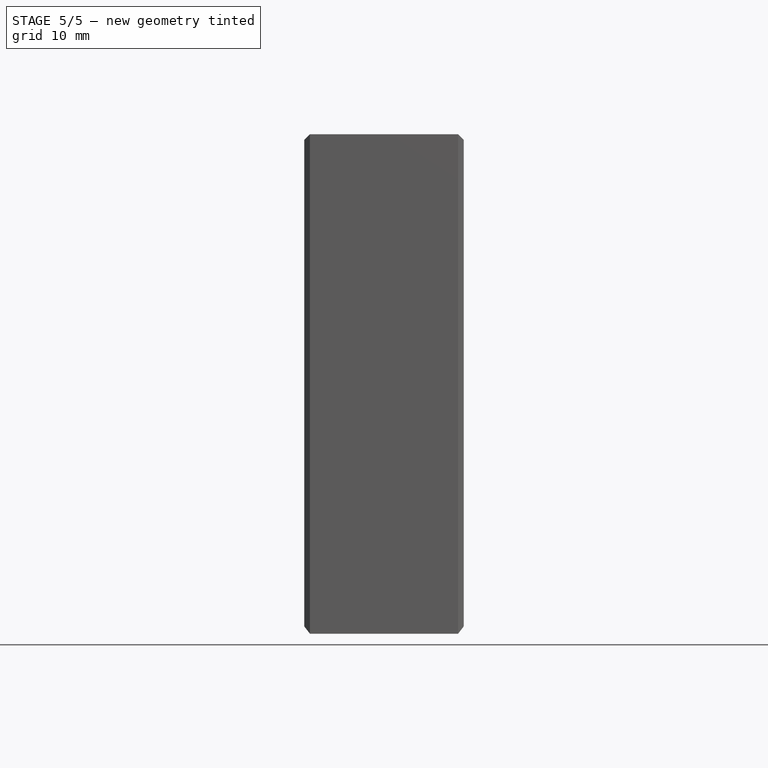
[diagram: stage 5 of 5 — front view after this stage's code; geometry added in this stage tinted green]
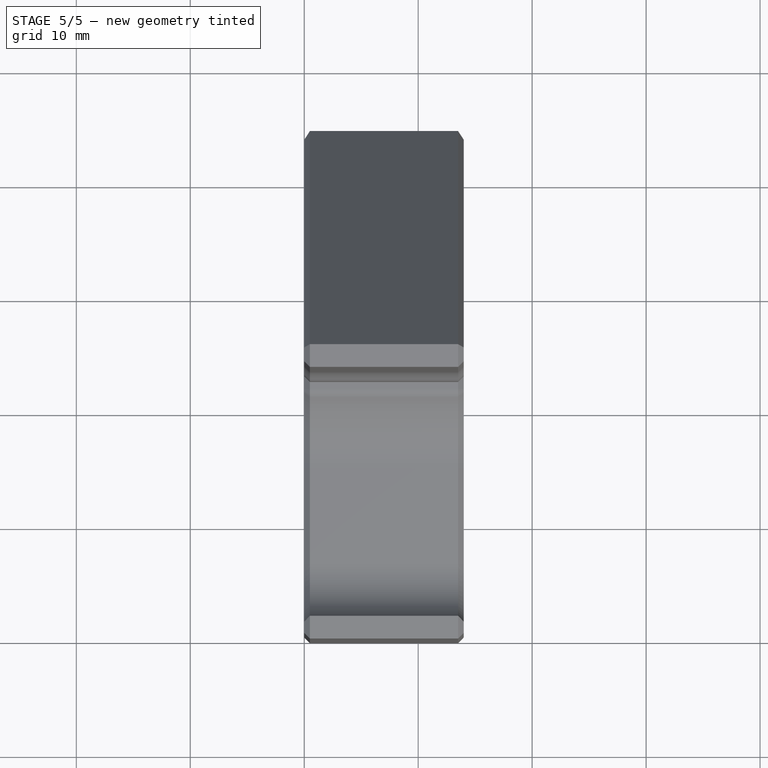
[diagram: stage 5 of 5 — top view after this stage's code; geometry added in this stage tinted green]
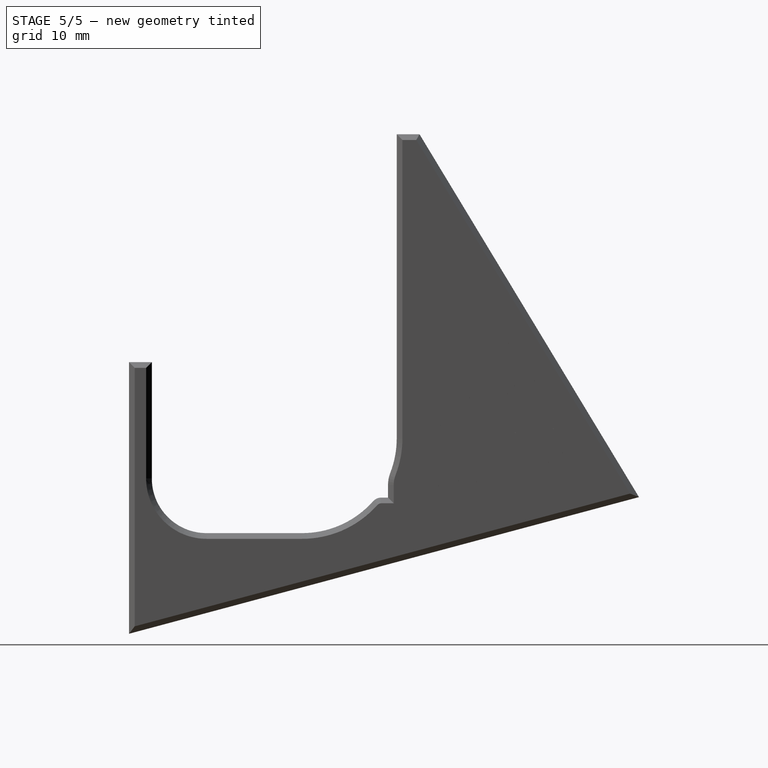
[diagram: stage 5 of 5 — right view after this stage's code; geometry added in this stage tinted green]
FEATURE [PartDesign::FeatureBase] Clone002
  BaseFeature = -> Pocket006
  Suppressed = false
FEATURE [Sketcher::SketchObject] Sketch008
  ArcFitTolerance = 0
  AttachmentSupport = -> [Clone002]
  ExternalGeometry = -> [Clone002]
  FullyConstrained = true
  MakeInternals = false
  MapMode = 5
  Placement = pos=(14,6.6e-15,3.8e-15) rot=(0.57735,0.57735,0.57735;2.0944rad)
  sketch-geometry (4):
    g0: LineSegment StartX=27.5105 StartY=12.7058 StartZ=0 EndX=36.397 EndY=15.0869 EndZ=0
    g1: LineSegment StartX=36.397 StartY=15.0869 StartZ=0 EndX=37.3029 EndY=11.7062 EndZ=0
    g2: LineSegment StartX=37.3029 StartY=11.7062 StartZ=0 EndX=28.4164 EndY=9.32503 EndZ=0
    g3: LineSegment StartX=28.4164 StartY=9.32503 StartZ=0 EndX=27.5105 EndY=12.7058 EndZ=0
  constraints (8):
    c: Coincident(g0,g-3)
    c: Coincident(g0,g-4)
    c: Coincident(g1,g0)
    c: Coincident(g1,g-4)
    c: Coincident(g2,g1)
    c: Coincident(g2,g-3)
    c: Coincident(g3,g2)
    c: Coincident(g3,g0)
FEATURE [PartDesign::Pad] Pad003
  BaseFeature = -> Clone002
  Direction = (1,0,0)
  Length = 2
  Length2 = 10
  Profile = -> Sketch008
  ReferenceAxis = -> Sketch008 [N_Axis]
  Refine = true
  Reversed = true
  Suppressed = false
  Type = 0
FEATURE [PartDesign::Pocket] Pocket009
  BaseFeature = -> Pad003
  Direction = (0,-0.258819,0.965926)
  Length = 0
  Length2 = 5
  Offset = 0.5
  Profile = -> ShapeString002
  ReferenceAxis = -> ShapeString002 [N_Axis]
  Suppressed = false
  Type = 3
  UpToFace = -> Pad003 [Face5]
FEATURE [PartDesign::Chamfer] Chamfer
  Angle = 45
  Base = -> Pocket009 [Face5,Face4]
  BaseFeature = -> Pocket009
  ChamferType = 0
  FlipDirection = false
  Size = 0.5
  Size2 = 1
  SupportTransform = false
  Suppressed = false
  UseAllEdges = false
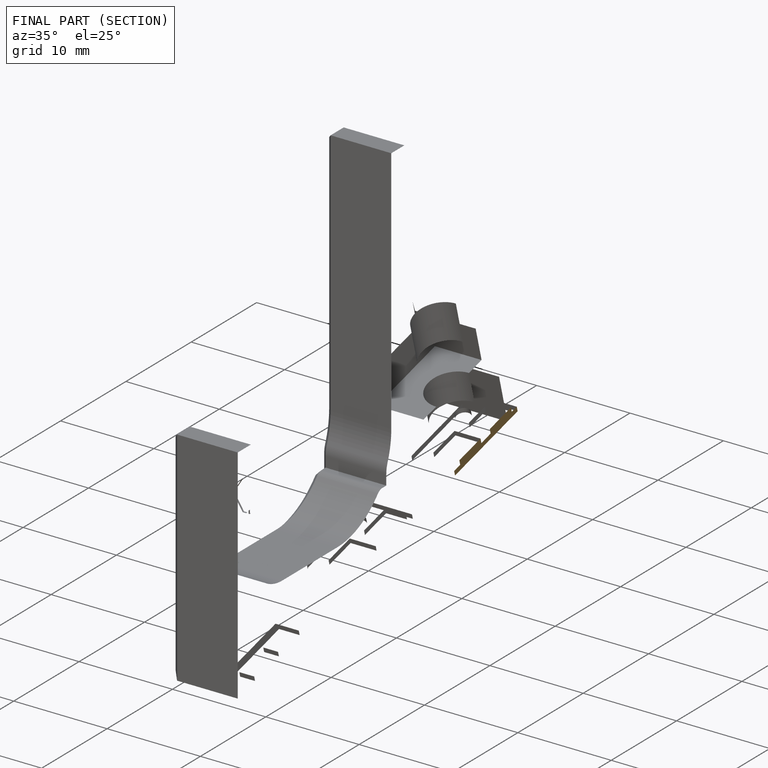
[diagram: finished part — half-section view (interior)]
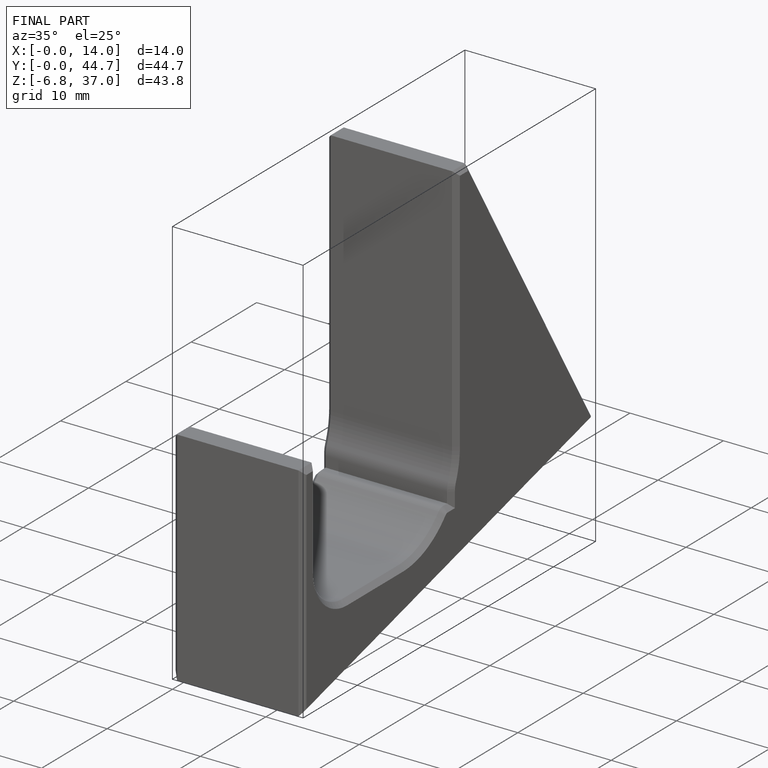
[diagram: finished part — iso view with bounding-box wireframe]
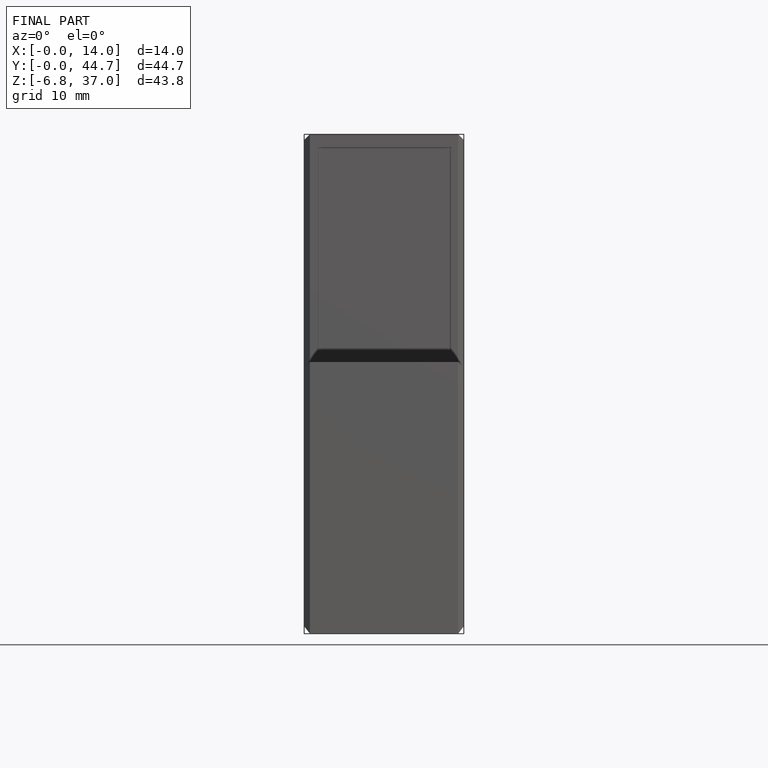
[diagram: finished part — front view with bounding-box wireframe]
